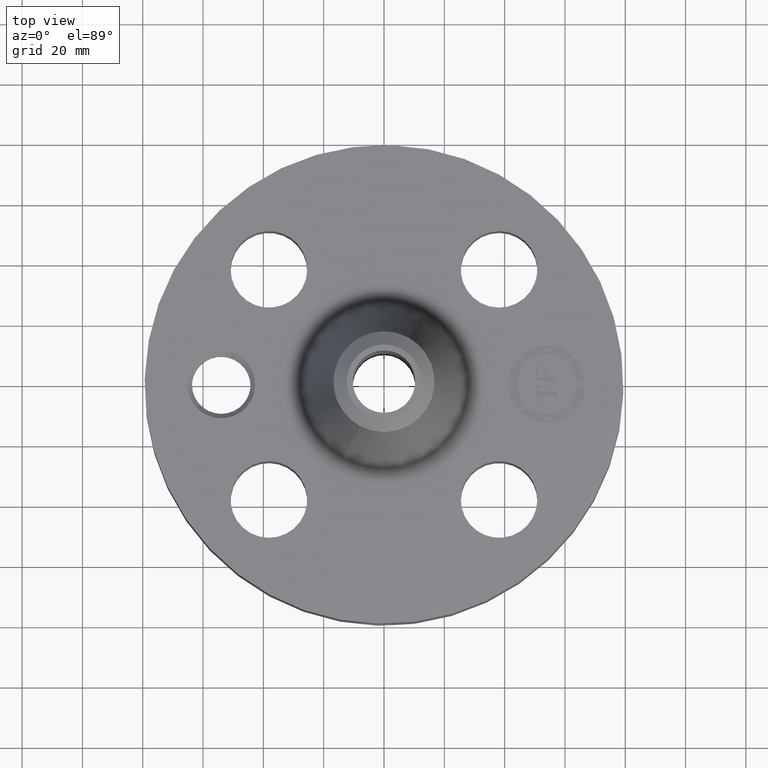
[diagram: clean part render]
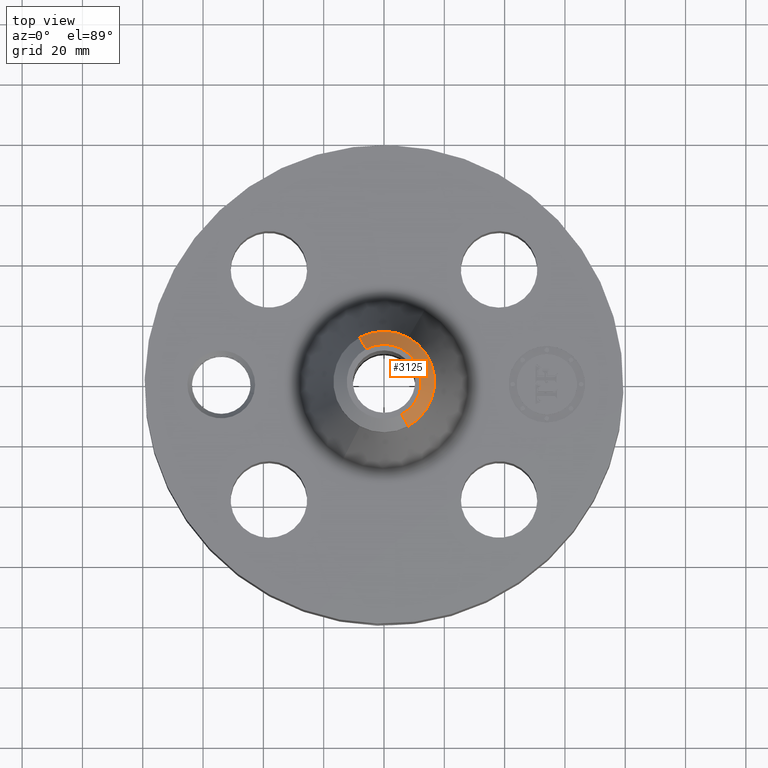
[diagram: same view with one face highlighted and labeled with its STEP entity id]
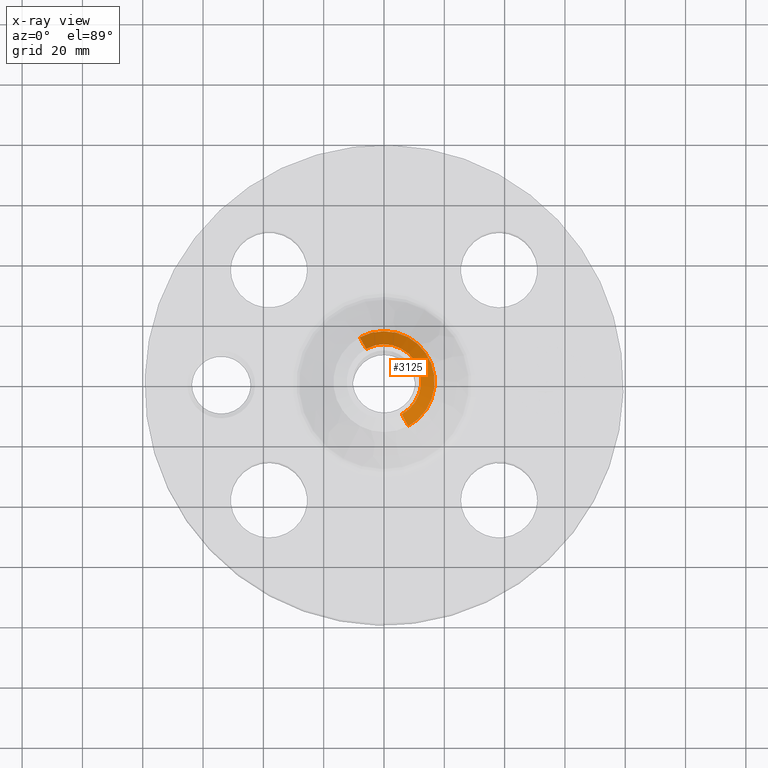
[diagram: x-ray of the same camera — body ghosted, the highlighted face saturated]
A machine part, top view. The second image highlights one B-rep face of the part: STEP entity #3125.
The next image is the same camera in x-ray: the body ghosted, the highlighted face saturated — about 0% of this face is hidden behind the body in this view.
In plain terms, the highlighted conical surface has half-angle 52.5 deg.
Its self-contained STEP definition (entity closure, byte-faithful):
#2283=AXIS2_PLACEMENT_3D('Circle Axis2P3D',#2281,#2282,$) ;
#3070=AXIS2_PLACEMENT_3D('Cone Axis2P3D',#3067,#3068,#3069) ;
#3108=AXIS2_PLACEMENT_3D('Circle Axis2P3D',#3106,#3107,$) ;
#3115=AXIS2_PLACEMENT_3D('Circle Axis2P3D',#3113,#3114,$) ;
#2281=CARTESIAN_POINT('Axis2P3D Location',(0.,0.,3.87000000002)) ;
#2285=CARTESIAN_POINT('Vertex',(0.233115949392,-0.426715883097,3.87000000002)) ;
#2287=CARTESIAN_POINT('Vertex',(-0.233115949392,0.426715883097,3.87000000002)) ;
#3067=CARTESIAN_POINT('Axis2P3D Location',(0.,0.,3.87000000002)) ;
#3072=CARTESIAN_POINT('Line Origine',(0.274768402436,-0.502960186973,3.80333469172)) ;
#3076=CARTESIAN_POINT('Vertex',(0.31642085548,-0.57920449085,3.73666938342)) ;
#3079=CARTESIAN_POINT('Line Origine',(-0.274768402436,0.502960186973,3.80333469172)) ;
#3083=CARTESIAN_POINT('Vertex',(-0.31642085548,0.57920449085,3.73666938342)) ;
#3106=CARTESIAN_POINT('Axis2P3D Location',(0.,0.,3.73666938342)) ;
#3110=CARTESIAN_POINT('Vertex',(0.31642085548,0.57920449085,3.73666938342)) ;
#3113=CARTESIAN_POINT('Axis2P3D Location',(0.,0.,3.73666938342)) ;
#2282=DIRECTION('Axis2P3D Direction',(0.,0.,-0.0393700787402)) ;
#3068=DIRECTION('Axis2P3D Direction',(-0.,-0.,-0.0393700787402)) ;
#3069=DIRECTION('Axis2P3D XDirection',(-0.0188750212049,0.0345504945626,0.)) ;
#3073=DIRECTION('Vector Direction',(0.014974561121,-0.02741075027,-0.023966985394)) ;
#3080=DIRECTION('Vector Direction',(-0.014974561121,0.02741075027,-0.023966985394)) ;
#3107=DIRECTION('Axis2P3D Direction',(0.,0.,-0.0393700787402)) ;
#3114=DIRECTION('Axis2P3D Direction',(0.,0.,-0.0393700787402)) ;
#3074=VECTOR('Line Direction',#3073,0.0393700787402) ;
#3081=VECTOR('Line Direction',#3080,0.0393700787402) ;
#3119=ORIENTED_EDGE('',*,*,#3085,.F.) ;
#3120=ORIENTED_EDGE('',*,*,#2289,.F.) ;
#3121=ORIENTED_EDGE('',*,*,#3078,.T.) ;
#3122=ORIENTED_EDGE('',*,*,#3112,.T.) ;
#3123=ORIENTED_EDGE('',*,*,#3117,.F.) ;
#3125=ADVANCED_FACE('PartBody',(#3124),#3071,.T.) ;
#2284=CIRCLE('generated circle',#2283,0.486240157482) ;
#3109=CIRCLE('generated circle',#3108,0.660000000003) ;
#3116=CIRCLE('generated circle',#3115,0.660000000003) ;
#3071=CONICAL_SURFACE('Cone',#3070,0.486240157482,0.916297857297) ;
#2289=EDGE_CURVE('',#2286,#2288,#2284,.F.) ;
#3078=EDGE_CURVE('',#2286,#3077,#3075,.T.) ;
#3085=EDGE_CURVE('',#2288,#3084,#3082,.T.) ;
#3112=EDGE_CURVE('',#3077,#3111,#3109,.F.) ;
#3117=EDGE_CURVE('',#3084,#3111,#3116,.T.) ;
#3118=EDGE_LOOP('',(#3119,#3120,#3121,#3122,#3123)) ;
#3124=FACE_OUTER_BOUND('',#3118,.T.) ;
#3075=LINE('Line',#3072,#3074) ;
#3082=LINE('Line',#3079,#3081) ;
#2286=VERTEX_POINT('',#2285) ;
#2288=VERTEX_POINT('',#2287) ;
#3077=VERTEX_POINT('',#3076) ;
#3084=VERTEX_POINT('',#3083) ;
#3111=VERTEX_POINT('',#3110) ;